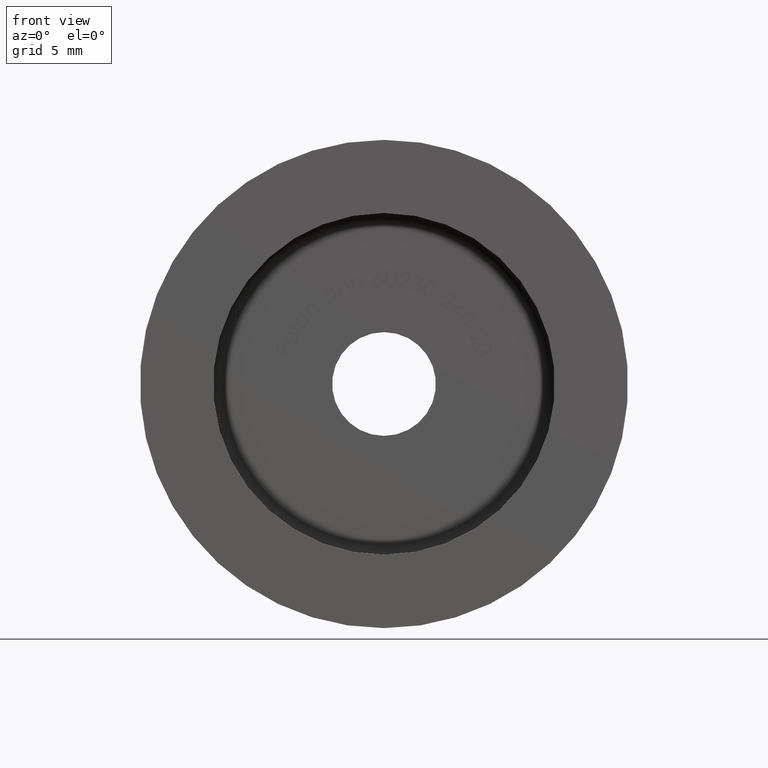
[diagram: clean part render]
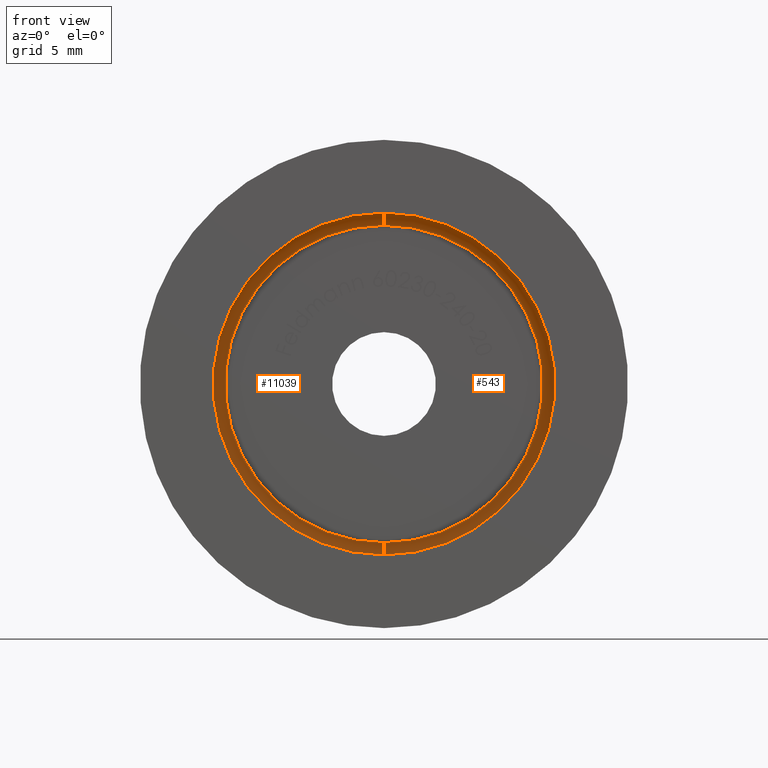
[diagram: same view with one multi-face feature highlighted, each face labeled with its STEP entity id]
A machine part, front view. The highlighted faces form ONE feature: a constant-radius fillet chain: 2 tangent blend faces with common blend radius 1 mm. The faces share edges in the B-rep.
Their STEP definitions:
[1] entity #543 (Torus):
#320 = DIRECTION ( 'NONE',  ( 0.000000000000000000, 0.000000000000000000, 1.000000000000000000 ) ) ;
#343 = DIRECTION ( 'NONE',  ( 1.000000000000000000, 0.000000000000000000, 1.224646799147353207E-16 ) ) ;
#543 = ADVANCED_FACE ( 'NONE', ( #8241 ), #12057, .F. ) ;
#1345 = DIRECTION ( 'NONE',  ( 0.000000000000000000, -1.000000000000000000, 0.000000000000000000 ) ) ;
#2007 = EDGE_CURVE ( 'NONE', #3306, #8307, #4635, .T. ) ;
#2226 = AXIS2_PLACEMENT_3D ( 'NONE', #14704, #8878, #13608 ) ;
#2666 = DIRECTION ( 'NONE',  ( -0.000000000000000000, 1.000000000000000000, -0.000000000000000000 ) ) ;
#3306 = VERTEX_POINT ( 'NONE', #11484 ) ;
#3673 = ORIENTED_EDGE ( 'NONE', *, *, #2007, .F. ) ;
#3754 = EDGE_CURVE ( 'NONE', #8307, #7653, #10505, .T. ) ;
#4191 = ORIENTED_EDGE ( 'NONE', *, *, #7228, .F. ) ;
#4635 = CIRCLE ( 'NONE', #12364, 1.000000000000000888 ) ;
#5546 = AXIS2_PLACEMENT_3D ( 'NONE', #6265, #2666, #320 ) ;
#6019 = ORIENTED_EDGE ( 'NONE', *, *, #3754, .F. ) ;
#6265 = CARTESIAN_POINT ( 'NONE',  ( 0.000000000000000000, 13.99999999999999822, 0.000000000000000000 ) ) ;
#6508 = AXIS2_PLACEMENT_3D ( 'NONE', #15525, #7111, #12010 ) ;
#7111 = DIRECTION ( 'NONE',  ( -0.000000000000000000, 1.000000000000000000, -0.000000000000000000 ) ) ;
#7228 = EDGE_CURVE ( 'NONE', #9328, #3306, #12580, .T. ) ;
#7279 = CARTESIAN_POINT ( 'NONE',  ( 0.000000000000000000, 15.00000000000000000, 0.000000000000000000 ) ) ;
#7653 = VERTEX_POINT ( 'NONE', #15708 ) ;
#8241 = FACE_OUTER_BOUND ( 'NONE', #10262, .T. ) ;
#8307 = VERTEX_POINT ( 'NONE', #12962 ) ;
#8447 = CIRCLE ( 'NONE', #2226, 1.000000000000000888 ) ;
#8497 = AXIS2_PLACEMENT_3D ( 'NONE', #7279, #1345, #14684 ) ;
#8878 = DIRECTION ( 'NONE',  ( -1.000000000000000000, 0.000000000000000000, 0.000000000000000000 ) ) ;
#8887 = CARTESIAN_POINT ( 'NONE',  ( 1.714505518806294638E-15, 13.99999999999999822, 14.00000000000000000 ) ) ;
#9328 = VERTEX_POINT ( 'NONE', #8887 ) ;
#9570 = EDGE_CURVE ( 'NONE', #9328, #7653, #8447, .T. ) ;
#10262 = EDGE_LOOP ( 'NONE', ( #3673, #4191, #11700, #6019 ) ) ;
#10505 = CIRCLE ( 'NONE', #8497, 13.00000000000000178 ) ;
#11484 = CARTESIAN_POINT ( 'NONE',  ( 0.000000000000000000, 13.99999999999999822, -14.00000000000000000 ) ) ;
#11700 = ORIENTED_EDGE ( 'NONE', *, *, #9570, .T. ) ;
#12010 = DIRECTION ( 'NONE',  ( 0.000000000000000000, 0.000000000000000000, 1.000000000000000000 ) ) ;
#12057 = TOROIDAL_SURFACE ( 'NONE', #6508, 13.00000000000000178, 1.000000000000000000 ) ;
#12364 = AXIS2_PLACEMENT_3D ( 'NONE', #12543, #343, #14948 ) ;
#12543 = CARTESIAN_POINT ( 'NONE',  ( 1.592040838891559293E-15, 13.99999999999999822, -13.00000000000000178 ) ) ;
#12580 = CIRCLE ( 'NONE', #5546, 14.00000000000000000 ) ;
#12962 = CARTESIAN_POINT ( 'NONE',  ( 1.653273178848927064E-15, 15.00000000000000000, -13.00000000000000178 ) ) ;
#13608 = DIRECTION ( 'NONE',  ( 0.000000000000000000, 0.000000000000000000, 1.000000000000000000 ) ) ;
#14684 = DIRECTION ( 'NONE',  ( 0.000000000000000000, 0.000000000000000000, 1.000000000000000000 ) ) ;
#14704 = CARTESIAN_POINT ( 'NONE',  ( 0.000000000000000000, 13.99999999999999822, 13.00000000000000178 ) ) ;
#14948 = DIRECTION ( 'NONE',  ( 1.224646799147351482E-16, 0.000000000000000000, -1.000000000000000000 ) ) ;
#15525 = CARTESIAN_POINT ( 'NONE',  ( 0.000000000000000000, 13.99999999999999822, 0.000000000000000000 ) ) ;
#15708 = CARTESIAN_POINT ( 'NONE',  ( 0.000000000000000000, 15.00000000000000000, 13.00000000000000178 ) ) ;
[2] entity #11039 (Torus):
#156 = DIRECTION ( 'NONE',  ( 0.000000000000000000, -1.000000000000000000, 0.000000000000000000 ) ) ;
#343 = DIRECTION ( 'NONE',  ( 1.000000000000000000, 0.000000000000000000, 1.224646799147353207E-16 ) ) ;
#376 = AXIS2_PLACEMENT_3D ( 'NONE', #8402, #14586, #6039 ) ;
#1087 = DIRECTION ( 'NONE',  ( -0.000000000000000000, 1.000000000000000000, -0.000000000000000000 ) ) ;
#1410 = EDGE_CURVE ( 'NONE', #3306, #9328, #2215, .T. ) ;
#2007 = EDGE_CURVE ( 'NONE', #3306, #8307, #4635, .T. ) ;
#2215 = CIRCLE ( 'NONE', #376, 14.00000000000000000 ) ;
#2226 = AXIS2_PLACEMENT_3D ( 'NONE', #14704, #8878, #13608 ) ;
#3306 = VERTEX_POINT ( 'NONE', #11484 ) ;
#3352 = CIRCLE ( 'NONE', #12877, 13.00000000000000178 ) ;
#4635 = CIRCLE ( 'NONE', #12364, 1.000000000000000888 ) ;
#6039 = DIRECTION ( 'NONE',  ( 0.000000000000000000, 0.000000000000000000, 1.000000000000000000 ) ) ;
#6071 = DIRECTION ( 'NONE',  ( 0.000000000000000000, 0.000000000000000000, 1.000000000000000000 ) ) ;
#7328 = DIRECTION ( 'NONE',  ( 0.000000000000000000, 0.000000000000000000, 1.000000000000000000 ) ) ;
#7379 = CARTESIAN_POINT ( 'NONE',  ( 0.000000000000000000, 15.00000000000000000, 0.000000000000000000 ) ) ;
#7381 = ORIENTED_EDGE ( 'NONE', *, *, #9570, .F. ) ;
#7653 = VERTEX_POINT ( 'NONE', #15708 ) ;
#8307 = VERTEX_POINT ( 'NONE', #12962 ) ;
#8399 = EDGE_CURVE ( 'NONE', #7653, #8307, #3352, .T. ) ;
#8402 = CARTESIAN_POINT ( 'NONE',  ( 0.000000000000000000, 13.99999999999999822, 0.000000000000000000 ) ) ;
#8447 = CIRCLE ( 'NONE', #2226, 1.000000000000000888 ) ;
#8878 = DIRECTION ( 'NONE',  ( -1.000000000000000000, 0.000000000000000000, 0.000000000000000000 ) ) ;
#8887 = CARTESIAN_POINT ( 'NONE',  ( 1.714505518806294638E-15, 13.99999999999999822, 14.00000000000000000 ) ) ;
#9328 = VERTEX_POINT ( 'NONE', #8887 ) ;
#9437 = ORIENTED_EDGE ( 'NONE', *, *, #8399, .F. ) ;
#9570 = EDGE_CURVE ( 'NONE', #9328, #7653, #8447, .T. ) ;
#10595 = ORIENTED_EDGE ( 'NONE', *, *, #1410, .F. ) ;
#10782 = CARTESIAN_POINT ( 'NONE',  ( 0.000000000000000000, 13.99999999999999822, 0.000000000000000000 ) ) ;
#11039 = ADVANCED_FACE ( 'NONE', ( #11492 ), #15439, .F. ) ;
#11484 = CARTESIAN_POINT ( 'NONE',  ( 0.000000000000000000, 13.99999999999999822, -14.00000000000000000 ) ) ;
#11492 = FACE_OUTER_BOUND ( 'NONE', #14531, .T. ) ;
#12024 = ORIENTED_EDGE ( 'NONE', *, *, #2007, .T. ) ;
#12364 = AXIS2_PLACEMENT_3D ( 'NONE', #12543, #343, #14948 ) ;
#12543 = CARTESIAN_POINT ( 'NONE',  ( 1.592040838891559293E-15, 13.99999999999999822, -13.00000000000000178 ) ) ;
#12877 = AXIS2_PLACEMENT_3D ( 'NONE', #7379, #156, #7328 ) ;
#12962 = CARTESIAN_POINT ( 'NONE',  ( 1.653273178848927064E-15, 15.00000000000000000, -13.00000000000000178 ) ) ;
#13608 = DIRECTION ( 'NONE',  ( 0.000000000000000000, 0.000000000000000000, 1.000000000000000000 ) ) ;
#14184 = AXIS2_PLACEMENT_3D ( 'NONE', #10782, #1087, #6071 ) ;
#14531 = EDGE_LOOP ( 'NONE', ( #10595, #12024, #9437, #7381 ) ) ;
#14586 = DIRECTION ( 'NONE',  ( -0.000000000000000000, 1.000000000000000000, -0.000000000000000000 ) ) ;
#14704 = CARTESIAN_POINT ( 'NONE',  ( 0.000000000000000000, 13.99999999999999822, 13.00000000000000178 ) ) ;
#14948 = DIRECTION ( 'NONE',  ( 1.224646799147351482E-16, 0.000000000000000000, -1.000000000000000000 ) ) ;
#15439 = TOROIDAL_SURFACE ( 'NONE', #14184, 13.00000000000000178, 1.000000000000000000 ) ;
#15708 = CARTESIAN_POINT ( 'NONE',  ( 0.000000000000000000, 15.00000000000000000, 13.00000000000000178 ) ) ;